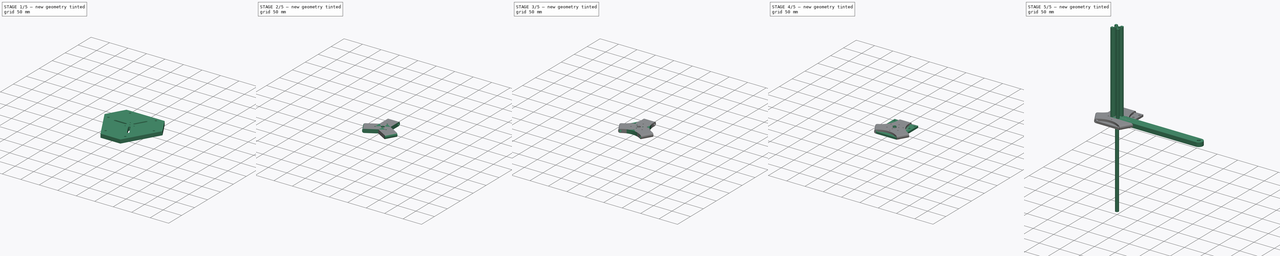
[diagram: build sequence overview — one tinted view per stage of 5, left to right]
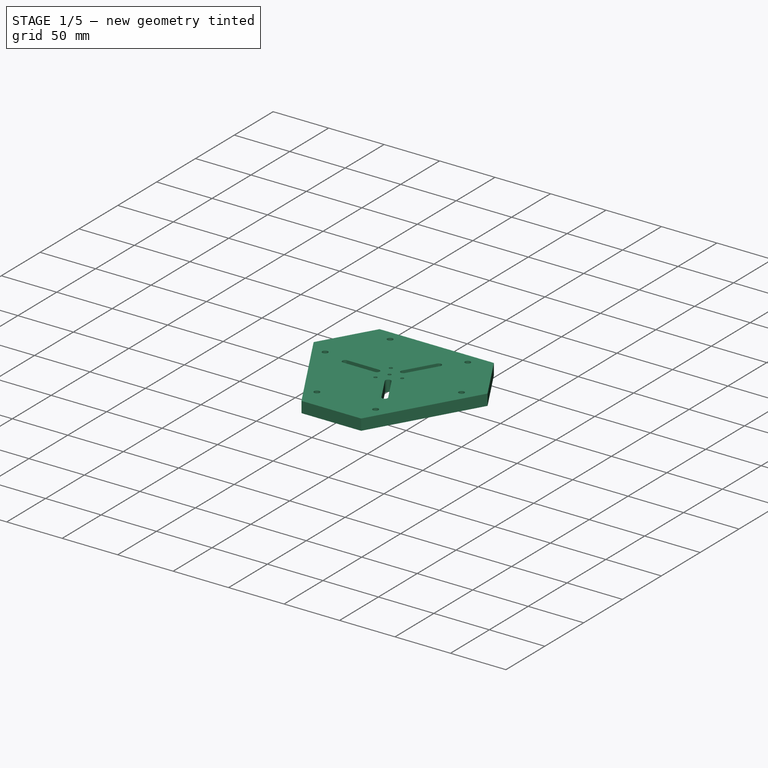
[diagram: stage 1 of 5 — iso view after this stage's code; geometry added in this stage tinted green]
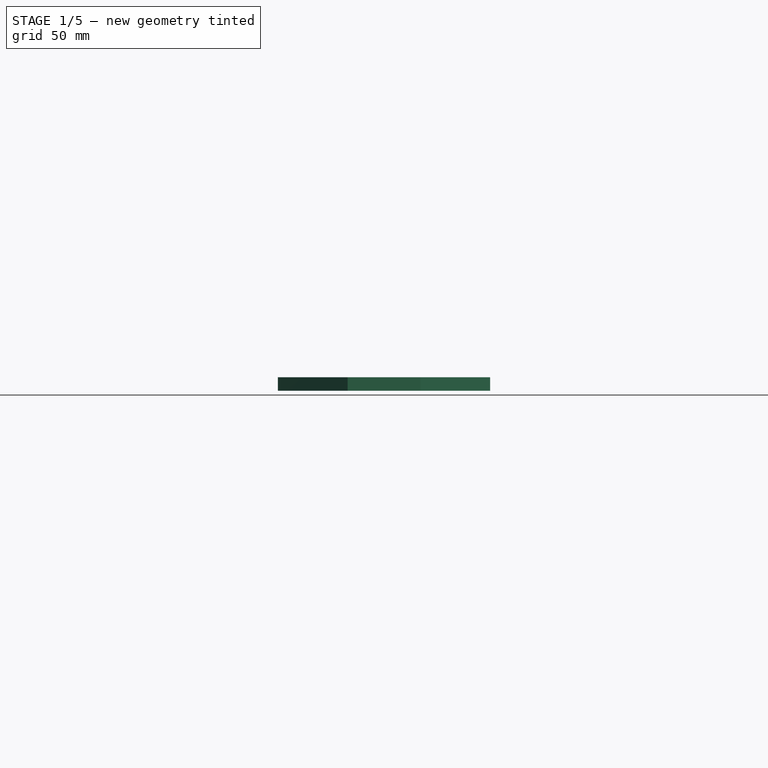
[diagram: stage 1 of 5 — front view after this stage's code; geometry added in this stage tinted green]
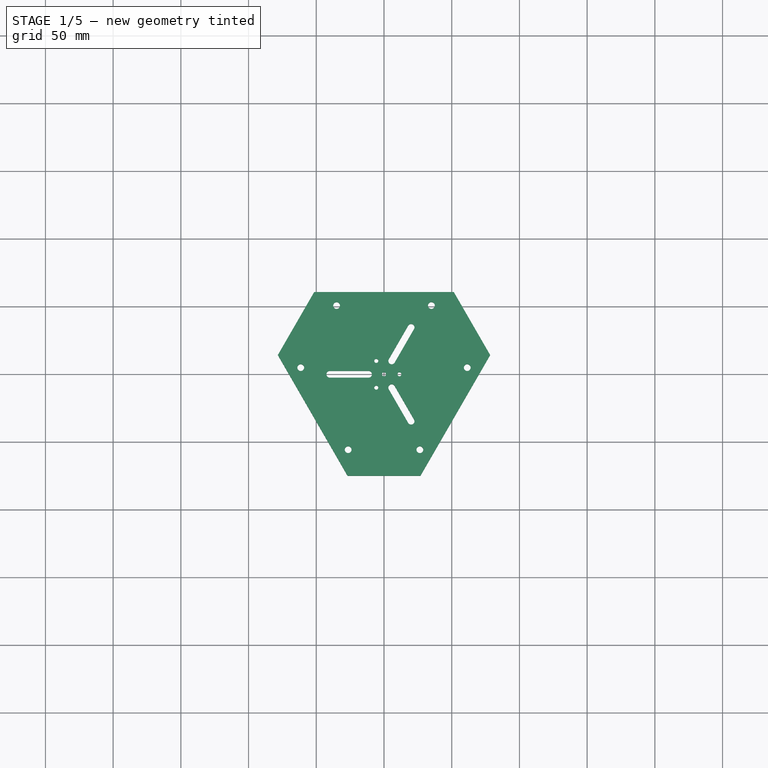
[diagram: stage 1 of 5 — top view after this stage's code; geometry added in this stage tinted green]
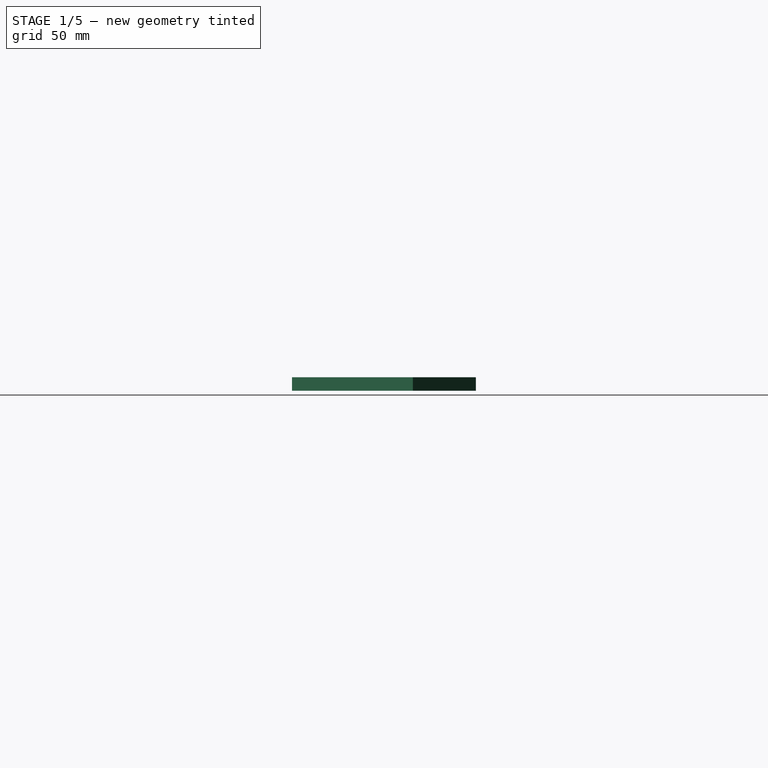
[diagram: stage 1 of 5 — right view after this stage's code; geometry added in this stage tinted green]
FCSTD DOCUMENT  (FreeCAD 1.0R38641 +468 (Git))
Label: 01main
License: All rights reserved
LicenseURL: https://en.wikipedia.org/wiki/All_rights_reserved
objects: Sketcher::SketchObject×14, PartDesign::Body×7, PartDesign::Pad×6, App::Part×4, PartDesign::Pocket×4, PartDesign::PolarPattern×3, PartDesign::Fillet×2, Spreadsheet::Sheet×1, PartDesign::Hole×1, PartDesign::Chamfer×1, PartDesign::Revolution×1, Part::Part2DObjectPython×1
note: 87 computed .brp shape members not serialized (recipe doc carries the construction recipe); baked Part::Feature solids carry a one-line shape summary decoded from their .brp

FEATURE [Spreadsheet::Sheet] Spreadsheet  label="ss"
  cells = A1='deltabot calculation - values for kinetic | https://www.marginallyclever.com/other/samples/fk-ik-test.html; A3='Base radius (f); B3(f)=300; D3='vslot_length-28.5!; E3==<<base_triangle_sketch>>.Constraints.vslot_length; F3='28.5 to add (halt nema 23); A4='Bicep length (rf); B4(rf)=200; C4='!= tube actual length; E4(vslot_length)==179.29 + 28.5; A5='Bicep inerdia (od_rf); B5(od_rf)=40; A6='Bicep outerdia (id_rf); B6(id_rf)=36; D6='DELTA_F; E6==<<Sketch024>>.Constraints.DELTA_F; A7='Bicep end length (end_rf); B7(end_rf)=25; A11='Forearm length (re); B11(re)=400; A12='End Effector radius (e); A13='Base to floor distance (b); A14='wrist(tool); B14(wrist)=90
FEATURE [Sketcher::SketchObject] Sketch
  ArcFitTolerance = 0
  AttachmentSupport = -> [XY_Plane]
  FullyConstrained = true
  MakeInternals = false
  MapMode = 5
  sketch-geometry (1):
    g0: Circle CenterX=0 CenterY=0 CenterZ=0 NormalX=0 NormalY=0 NormalZ=1 AngleXU=0 Radius=4
  constraints (2):
    c: Coincident(g0,g-1)
    c: Diameter(g0) = 8
FEATURE [App::Part] Part002  label="tool"
  Origin = -> Origin010
FEATURE [Sketcher::SketchObject] Sketch010
  ArcFitTolerance = 1e-06
  AttachmentSupport = -> [XY_Plane011]
  FullyConstrained = true
  MakeInternals = false
  MapMode = 5
FEATURE [Sketcher::SketchObject] Sketch011  label="base_triangle_sketch"
  ArcFitTolerance = 1e-06
  AttachmentSupport = -> [XY_Plane012]
  FullyConstrained = false
  MakeInternals = false
  MapMode = 5
  sketch-geometry (16):
    g0: Circle [constr] CenterX=0 CenterY=0 CenterZ=0 NormalX=0 NormalY=0 NormalZ=1 AngleXU=0 Radius=300
    g1: Circle [constr] CenterX=0 CenterY=0 CenterZ=0 NormalX=0 NormalY=0 NormalZ=1 AngleXU=0 Radius=110
    g2: LineSegment [constr] StartX=0 StartY=150 StartZ=0 EndX=-129.904 EndY=-75 EndZ=0
    g3: LineSegment [constr] StartX=-129.904 StartY=-75 StartZ=0 EndX=129.904 EndY=-75 EndZ=0
    g4: LineSegment [constr] StartX=129.904 StartY=-75 StartZ=0 EndX=0 EndY=150 EndZ=0
    g5: Circle [constr] CenterX=0 CenterY=0 CenterZ=0 NormalX=0 NormalY=0 NormalZ=1 AngleXU=0 Radius=150
    g6: LineSegment [constr] StartX=0 StartY=110 StartZ=0 EndX=195.089 EndY=-227.904 EndZ=0
    g7: LineSegment [constr] StartX=95.2628 StartY=-55 StartZ=0 EndX=-294.915 EndY=-55 EndZ=0
    g8: LineSegment [constr] StartX=-71.877 StartY=-83.2688 StartZ=0 EndX=67.7767 EndY=292.244 EndZ=0
    g9: LineSegment StartX=-51.5163 StartY=60.7711 StartZ=0 EndX=51.5163 EndY=60.7711 EndZ=0
    g10: LineSegment StartX=78.3875 StartY=14.2289 StartZ=0 EndX=26.8711 EndY=-75 EndZ=0
    g11: LineSegment StartX=-26.8711 StartY=-75 StartZ=0 EndX=-78.3875 EndY=14.2289 EndZ=0
    g12: LineSegment StartX=-51.5163 StartY=60.7711 StartZ=0 EndX=-78.3875 EndY=14.2289 EndZ=0
    g13: LineSegment StartX=-26.8711 StartY=-75 StartZ=0 EndX=26.8711 EndY=-75 EndZ=0
    g14: LineSegment StartX=51.5163 StartY=60.7711 StartZ=0 EndX=78.3875 EndY=14.2289 EndZ=0
    g15: LineSegment [constr] StartX=95.2628 StartY=-55 StartZ=0 EndX=112.583 EndY=-45 EndZ=0
  constraints (47):
    c: Coincident(g0,g-1)
    c: PointOnObject(g8,g1)
    c: PointOnObject(g7,g1)
    c: PointOnObject(g6,g1)
    c: Coincident(g1,g0)
    c: Coincident(g2,g3)
    c: Coincident(g3,g4)
    c: Coincident(g4,g2)
    c: Equal(g2,g3)
    c: Equal(g2,g4)
    c: PointOnObject(g2,g5)
    c: PointOnObject(g3,g5)
    c: PointOnObject(g4,g5)
    c: Coincident(g5,g0)
    c: PointOnObject(g6,g-2)
    c: PointOnObject(g2,g-2)
    c: PointOnObject(g6,g0)
    c: PointOnObject(g7,g6)
    c: PointOnObject(g7,g0)
    c: Horizontal(g7)
    c: PointOnObject(g6,g8)
    c: PointOnObject(g8,g0)
    c: Diameter(g5) = 300
    c: Distance(g6,g6) = 390.178  'vslot_length'
    c: PointOnObject(g9,g2)
    c: PointOnObject(g9,g4)
    c: Horizontal(g9)
    c: PointOnObject(g10,g4)
    c: PointOnObject(g10,g3)
    c: PointOnObject(g11,g3)
    c: PointOnObject(g11,g2)
    c: Coincident(g9,g12)
    c: Coincident(g12,g11)
    c: Coincident(g11,g13)
    c: Coincident(g13,g10)
    c: Coincident(g9,g14)
    c: Coincident(g14,g10)
    c: Equal(g13,g12)
    c: Equal(g12,g14)
    c: Angle(g13,g11) = 2.0944
    c: Angle(g10,g13) = 2.0944
    c: Parallel(g6,g14)
    c: Coincident(g15,g7)
    c: PointOnObject(g15,g4)
    c: Perpendicular(g6,g15)
    c: Distance(g15,g15) = 20
    c: Diameter(g0) = 600
FEATURE [PartDesign::Pad] Pad007
  Direction = (0,0,1)
  Length = 10
  Length2 = 10
  Profile = -> Sketch011
  ReferenceAxis = -> Sketch011 [N_Axis]
  Refine = true
  Suppressed = false
  Type = 0
FEATURE [Sketcher::SketchObject] Sketch015
  ArcFitTolerance = 1e-06
  AttachmentSupport = -> [XY_Plane014]
  FullyConstrained = false
  MakeInternals = false
  MapMode = 5
  sketch-geometry (50):
    g0: ArcOfCircle CenterX=0 CenterY=0 CenterZ=0 NormalX=0 NormalY=0 NormalZ=1 AngleXU=0 Radius=2.5 StartAngle=3.14159 EndAngle=6.28319
    g1: LineSegment StartX=-10 StartY=-5.1 StartZ=0 EndX=-10 EndY=-8.5 EndZ=0
    g2: ArcOfCircle CenterX=-8.5 CenterY=-8.5 CenterZ=0 NormalX=0 NormalY=0 NormalZ=1 AngleXU=0 Radius=1.5 StartAngle=3.14159 EndAngle=4.71239
    g3: LineSegment StartX=-8.5 StartY=-10 StartZ=0 EndX=-5.1 EndY=-10 EndZ=0
    g4: LineSegment StartX=-5.1 StartY=-10 StartZ=0 EndX=-3.1 EndY=-8 EndZ=0
    g5: LineSegment StartX=-3.1 StartY=-8 StartZ=0 EndX=-5.3 EndY=-8 EndZ=0
    g6: LineSegment StartX=-5.3 StartY=-8 StartZ=0 EndX=-5.3 EndY=-6.57279 EndZ=0
    g7: LineSegment StartX=-5.3 StartY=-6.57279 StartZ=0 EndX=-2.72721 EndY=-4 EndZ=0
    g8: LineSegment StartX=-2.72721 StartY=-4 StartZ=0 EndX=2.72721 EndY=-4 EndZ=0
    g9: LineSegment StartX=2.72721 StartY=-4 StartZ=0 EndX=5.3 EndY=-6.57279 EndZ=0
    g10: LineSegment StartX=5.3 StartY=-6.57279 StartZ=0 EndX=5.3 EndY=-8 EndZ=0
    g11: LineSegment StartX=5.3 StartY=-8 StartZ=0 EndX=3.1 EndY=-8 EndZ=0
    g12: LineSegment StartX=3.1 StartY=-8 StartZ=0 EndX=5.1 EndY=-10 EndZ=0
    g13: LineSegment StartX=5.1 StartY=-10 StartZ=0 EndX=8.5 EndY=-10 EndZ=0
    g14: ArcOfCircle CenterX=8.5 CenterY=-8.5 CenterZ=0 NormalX=0 NormalY=0 NormalZ=1 AngleXU=0 Radius=1.5 StartAngle=4.71239 EndAngle=6.28319
    g15: LineSegment StartX=10 StartY=-8.5 StartZ=0 EndX=10 EndY=-5.1 EndZ=0
    g16: LineSegment StartX=10 StartY=-5.1 StartZ=0 EndX=8 EndY=-3.1 EndZ=0
    g17: LineSegment StartX=8 StartY=-3.1 StartZ=0 EndX=8 EndY=-5.3 EndZ=0
    g18: LineSegment StartX=8 StartY=-5.3 StartZ=0 EndX=6.57279 EndY=-5.3 EndZ=0
    g19: LineSegment StartX=6.57279 StartY=-5.3 StartZ=0 EndX=4 EndY=-2.72721 EndZ=0
    g20: LineSegment StartX=4 StartY=-2.72721 StartZ=0 EndX=4 EndY=2.72721 EndZ=0
    g21: LineSegment StartX=4 StartY=2.72721 StartZ=0 EndX=6.57279 EndY=5.3 EndZ=0
    g22: LineSegment StartX=6.57279 StartY=5.3 StartZ=0 EndX=8 EndY=5.3 EndZ=0
    g23: LineSegment StartX=8 StartY=5.3 StartZ=0 EndX=8 EndY=3.1 EndZ=0
    g24: LineSegment StartX=8 StartY=3.1 StartZ=0 EndX=10 EndY=5.1 EndZ=0
    g25: LineSegment StartX=10 StartY=5.1 StartZ=0 EndX=10 EndY=8.5 EndZ=0
    g26: ArcOfCircle CenterX=8.5 CenterY=8.5 CenterZ=0 NormalX=0 NormalY=0 NormalZ=1 AngleXU=0 Radius=1.5 StartAngle=0 EndAngle=1.5708
    g27: LineSegment StartX=8.5 StartY=10 StartZ=0 EndX=5.1 EndY=10 EndZ=0
    g28: LineSegment StartX=5.1 StartY=10 StartZ=0 EndX=3.1 EndY=8 EndZ=0
    g29: LineSegment StartX=3.1 StartY=8 StartZ=0 EndX=5.3 EndY=8 EndZ=0
    g30: LineSegment StartX=5.3 StartY=8 StartZ=0 EndX=5.3 EndY=6.57279 EndZ=0
    g31: LineSegment StartX=5.3 StartY=6.57279 StartZ=0 EndX=2.72721 EndY=4 EndZ=0
    g32: LineSegment StartX=2.72721 StartY=4 StartZ=0 EndX=-2.72721 EndY=4 EndZ=0
    g33: LineSegment StartX=-2.72721 StartY=4 StartZ=0 EndX=-5.3 EndY=6.57279 EndZ=0
    g34: LineSegment StartX=-5.3 StartY=6.57279 StartZ=0 EndX=-5.3 EndY=8 EndZ=0
    g35: LineSegment StartX=-5.3 StartY=8 StartZ=0 EndX=-3.1 EndY=8 EndZ=0
    g36: LineSegment StartX=-3.1 StartY=8 StartZ=0 EndX=-5.1 EndY=10 EndZ=0
    g37: LineSegment StartX=-5.1 StartY=10 StartZ=0 EndX=-8.5 EndY=10 EndZ=0
    g38: ArcOfCircle CenterX=-8.5 CenterY=8.5 CenterZ=0 NormalX=0 NormalY=0 NormalZ=1 AngleXU=0 Radius=1.5 StartAngle=1.5708 EndAngle=3.14159
    g39: LineSegment StartX=-10 StartY=8.5 StartZ=0 EndX=-10 EndY=5.1 EndZ=0
    g40: LineSegment StartX=-10 StartY=5.1 StartZ=0 EndX=-8 EndY=3.1 EndZ=0
    g41: LineSegment StartX=-8 StartY=3.1 StartZ=0 EndX=-8 EndY=5.3 EndZ=0
    g42: LineSegment StartX=-8 StartY=5.3 StartZ=0 EndX=-6.57279 EndY=5.3 EndZ=0
    g43: LineSegment StartX=-6.57279 StartY=5.3 StartZ=0 EndX=-4 EndY=2.72721 EndZ=0
    g44: LineSegment StartX=-4 StartY=2.72721 StartZ=0 EndX=-4 EndY=-2.72721 EndZ=0
    g45: LineSegment StartX=-4 StartY=-2.72721 StartZ=0 EndX=-6.57279 EndY=-5.3 EndZ=0
    g46: LineSegment StartX=-6.57279 StartY=-5.3 StartZ=0 EndX=-8 EndY=-5.3 EndZ=0
    g47: LineSegment StartX=-8 StartY=-5.3 StartZ=0 EndX=-8 EndY=-3.1 EndZ=0
    g48: LineSegment StartX=-8 StartY=-3.1 StartZ=0 EndX=-10 EndY=-5.1 EndZ=0
    g49: ArcOfCircle CenterX=0 CenterY=0 CenterZ=0 NormalX=0 NormalY=0 NormalZ=1 AngleXU=0 Radius=2.5 StartAngle=0 EndAngle=3.14159
FEATURE [Sketcher::SketchObject] Sketch012
  ArcFitTolerance = 1e-06
  AttachmentSupport = -> [XY_Plane012]
  ExternalGeometry = -> [Pad007]
  FullyConstrained = true
  MakeInternals = false
  MapMode = 5
  sketch-geometry (7):
    g0: Circle CenterX=-35 CenterY=50.7711 CenterZ=0 NormalX=0 NormalY=0 NormalZ=1 AngleXU=0 Radius=2.5
    g1: LineSegment [constr] StartX=0 StartY=50.7711 StartZ=0 EndX=-35 EndY=50.7711 EndZ=0
    g2: Circle CenterX=35 CenterY=50.7711 CenterZ=0 NormalX=0 NormalY=0 NormalZ=1 AngleXU=0 Radius=2.5
    g3: ArcOfCircle [constr] CenterX=-35 CenterY=50.7711 CenterZ=0 NormalX=0 NormalY=0 NormalZ=1 AngleXU=0 Radius=2.6 StartAngle=1.5708 EndAngle=4.71239
    g4: ArcOfCircle [constr] CenterX=35 CenterY=50.7711 CenterZ=0 NormalX=0 NormalY=0 NormalZ=1 AngleXU=0 Radius=2.6 StartAngle=4.71239 EndAngle=7.85398
    g5: LineSegment [constr] StartX=-35 StartY=53.3711 StartZ=0 EndX=35 EndY=53.3711 EndZ=0
    g6: LineSegment [constr] StartX=-35 StartY=48.1711 StartZ=0 EndX=35 EndY=48.1711 EndZ=0
  constraints (16):
    c: Coincident(g0,g1)
    c: Symmetric(g0,g2,g1)
    c: Equal(g2,g0)
    c: Diameter(g0) = 5
    c: Distance(g0,g2) = 70
    c: Tangent(g3,g5) = 1.5708
    c: Tangent(g3,g6) = -1.5708
    c: Tangent(g4,g5) = 1.5708
    c: Tangent(g4,g6) = -1.5708
    c: Equal(g3,g4)
    c: Coincident(g3,g0)
    c: Coincident(g4,g2)
    c: Radius(g4) = 2.6
    c: PointOnObject(g1,g-2)
    c: Perpendicular(g-2,g1)
    c: DistanceY(g2,g-3) = 10
FEATURE [PartDesign::Pocket] Pocket003
  BaseFeature = -> Pad007
  Direction = (0,0,-1)
  Length = 5
  Length2 = 5
  Profile = -> Sketch012
  ReferenceAxis = -> Sketch012 [N_Axis]
  Refine = true
  Reversed = true
  Suppressed = false
  Type = 1
FEATURE [PartDesign::PolarPattern] PolarPattern
  Angle = 360
  Axis = -> Sketch012 [N_Axis]
  BaseFeature = -> Pocket003
  Mode = 0
  Occurrences = 3
  Offset = 120
  Originals = -> [Pocket003]
  Refine = true
  Suppressed = false
  TransformMode = 0
FEATURE [PartDesign::Body] Body  label="forearm_axis"
  AllowCompound = false
  Group = -> [Sketch,Pad,Sketch010]
  Origin = -> Origin
  Tip = -> Pad
FEATURE [App::Part] Part001  label="forearm"
  Group = -> [Body]
  Origin = -> Origin009
FEATURE [Sketcher::SketchObject] Sketch020
  ArcFitTolerance = 1e-06
  AttachmentSupport = -> [PolarPattern]
  ExternalGeometry = -> [PolarPattern]
  FullyConstrained = false
  MakeInternals = false
  MapMode = 5
  Placement = pos=(0,0,10) rot=(0,0,1;0rad)
  sketch-geometry (35):
    g0: GeomPoint [constr] X=0 Y=0 Z=0
    g1: Circle CenterX=-5.70397 CenterY=9.87956 CenterZ=0 NormalX=0 NormalY=0 NormalZ=1 AngleXU=0 Radius=1.5
    g2: Circle CenterX=0 CenterY=0 CenterZ=0 NormalX=0 NormalY=0 NormalZ=1 AngleXU=0 Radius=1.5
    g3: Circle CenterX=11.4079 CenterY=0 CenterZ=0 NormalX=0 NormalY=0 NormalZ=1 AngleXU=0 Radius=1.5
    g4: Circle CenterX=-5.70397 CenterY=-9.87956 CenterZ=0 NormalX=0 NormalY=0 NormalZ=1 AngleXU=0 Radius=1.5
    g5: LineSegment [constr] StartX=5.70397 StartY=-9.87956 StartZ=0 EndX=5.70397 EndY=9.87956 EndZ=0
    g6: LineSegment [constr] StartX=5.70397 StartY=9.87956 StartZ=0 EndX=-11.4079 EndY=0 EndZ=0
    g7: LineSegment [constr] StartX=-11.4079 StartY=0 StartZ=0 EndX=5.70397 EndY=-9.87956 EndZ=0
    g8: Circle [constr] CenterX=0 CenterY=0 CenterZ=0 NormalX=0 NormalY=0 NormalZ=1 AngleXU=0 Radius=11.4079
    g9: LineSegment [constr] StartX=0 StartY=0 StartZ=0 EndX=-28.1472 EndY=48.7524 EndZ=0
    g10: Circle [constr] CenterX=0 CenterY=0 CenterZ=0 NormalX=0 NormalY=0 NormalZ=1 AngleXU=0 Radius=40
    g11: LineSegment [constr] StartX=0 StartY=0 StartZ=0 EndX=20 EndY=34.641 EndZ=0
    g12: LineSegment [constr] StartX=0 StartY=0 StartZ=0 EndX=20 EndY=-34.641 EndZ=0
    g13: LineSegment [constr] StartX=0 StartY=0 StartZ=0 EndX=-40 EndY=0 EndZ=0
    g14: GeomPoint [constr] X=-12.1812 Y=21.0985 Z=0
    g15: ArcOfCircle CenterX=-40 CenterY=2e-16 CenterZ=0 NormalX=0 NormalY=0 NormalZ=1 AngleXU=0 Radius=2.5 StartAngle=1.5708 EndAngle=4.71239
    g16: ArcOfCircle CenterX=-11.4079 CenterY=0 CenterZ=0 NormalX=0 NormalY=0 NormalZ=1 AngleXU=0 Radius=2.5 StartAngle=4.71239 EndAngle=7.85398
    g17: LineSegment StartX=-40 StartY=2.5 StartZ=0 EndX=-11.4079 EndY=2.5 EndZ=0
    g18: LineSegment StartX=-40 StartY=-2.5 StartZ=0 EndX=-11.4079 EndY=-2.5 EndZ=0
    g19: ArcOfCircle CenterX=5.70397 CenterY=-9.87956 CenterZ=0 NormalX=0 NormalY=0 NormalZ=1 AngleXU=0 Radius=2.5 StartAngle=0.523599 EndAngle=3.66519
    g20: ArcOfCircle CenterX=20 CenterY=-34.641 CenterZ=0 NormalX=0 NormalY=0 NormalZ=1 AngleXU=0 Radius=2.5 StartAngle=3.66519 EndAngle=6.80678
    g21: LineSegment StartX=7.86903 StartY=-8.62956 StartZ=0 EndX=22.1651 EndY=-33.391 EndZ=0
    g22: LineSegment StartX=3.5389 StartY=-11.1296 StartZ=0 EndX=17.8349 EndY=-35.891 EndZ=0
    g23: ArcOfCircle CenterX=5.70397 CenterY=9.87956 CenterZ=0 NormalX=0 NormalY=0 NormalZ=1 AngleXU=0 Radius=2.5 StartAngle=2.61799 EndAngle=5.75959
    g24: ArcOfCircle CenterX=20 CenterY=34.641 CenterZ=0 NormalX=0 NormalY=0 NormalZ=1 AngleXU=0 Radius=2.5 StartAngle=5.75959 EndAngle=8.90118
    g25: LineSegment StartX=3.5389 StartY=11.1296 StartZ=0 EndX=17.8349 EndY=35.891 EndZ=0
    g26: LineSegment StartX=7.86903 StartY=8.62956 StartZ=0 EndX=22.1651 EndY=33.391 EndZ=0
    g27: Circle [constr] CenterX=0 CenterY=0 CenterZ=0 NormalX=0 NormalY=0 NormalZ=1 AngleXU=0 Radius=11.4079
    g28: LineSegment [constr] StartX=5.70397 StartY=9.87956 StartZ=0 EndX=-5.70397 EndY=-9.87956 EndZ=0
    g29: Circle [constr] CenterX=20 CenterY=34.641 CenterZ=0 NormalX=0 NormalY=0 NormalZ=1 AngleXU=0 Radius=2.5
    g30: Circle [constr] CenterX=5.70397 CenterY=9.87956 CenterZ=0 NormalX=0 NormalY=0 NormalZ=1 AngleXU=0 Radius=2.5
    g31: Circle CenterX=-11.4079 CenterY=0 CenterZ=0 NormalX=0 NormalY=0 NormalZ=1 AngleXU=0 Radius=1e-16
    g32: Circle [constr] CenterX=-11.4079 CenterY=0 CenterZ=0 NormalX=0 NormalY=0 NormalZ=1 AngleXU=0 Radius=2.5
    g33: Circle [constr] CenterX=5.70397 CenterY=-9.87956 CenterZ=0 NormalX=0 NormalY=0 NormalZ=1 AngleXU=0 Radius=2.5
    g34: Circle [constr] CenterX=-40 CenterY=0 CenterZ=0 NormalX=0 NormalY=0 NormalZ=1 AngleXU=0 Radius=2.5
  constraints (77):
    c: Coincident(g0,g-1)
    c: Diameter(g1) = 3
    c: Diameter(g2) = 3
    c: Diameter(g3) = 3
    c: Diameter(g4) = 3
    c: Coincident(g5,g6)
    c: Coincident(g6,g7)
    c: Coincident(g7,g5)
    c: Equal(g5,g6)
    c: Equal(g5,g7)
    c: PointOnObject(g5,g8)
    c: PointOnObject(g6,g8)
    c: PointOnObject(g7,g8)
    c: Coincident(g8,g0)
    c: Coincident(g9,g0)
    c: Parallel(g-3,g9)
    c: Coincident(g10,g0)
    c: Coincident(g11,g0)
    c: PointOnObject(g11,g10)
    c: PointOnObject(g5,g11)
    c: Coincident(g12,g0)
    c: PointOnObject(g12,g10)
    c: PointOnObject(g5,g12)
    c: Coincident(g13,g0)
    c: PointOnObject(g13,g10)
    c: Horizontal(g13)
    c: PointOnObject(g6,g13)
    c: PointOnObject(g14,g9)
    c: Tangent(g15,g17) = 1.5708
    c: Tangent(g15,g18) = -1.5708
    c: Tangent(g16,g17) = 1.5708
    c: Tangent(g16,g18) = -1.5708
    c: Equal(g15,g16)
    c: Horizontal(g18)
    c: Tangent(g19,g21) = 1.5708
    c: Tangent(g19,g22) = -1.5708
    c: Tangent(g20,g21) = 1.5708
    c: Tangent(g20,g22) = -1.5708
    c: Equal(g19,g20)
    c: Coincident(g19,g5)
    c: Coincident(g20,g12)
    c: Tangent(g23,g25) = 1.5708
    c: Tangent(g23,g26) = -1.5708
    c: Tangent(g24,g25) = 1.5708
    c: Tangent(g24,g26) = -1.5708
    c: Equal(g23,g24)
    c: Coincident(g23,g5)
    c: Coincident(g24,g11)
    c: Equal(g24,g15)
    c: Equal(g15,g20)
    c: Radius(g24) = 2.5
    c: PointOnObject(g15,g10)
    c: Coincident(g2,g0)
    c: PointOnObject(g1,g9)
    c: Coincident(g6,g16)
    c: PointOnObject(g3,g-1)
    c: Coincident(g27,g0)
    c: PointOnObject(g1,g27)
    c: PointOnObject(g3,g27)
    c: PointOnObject(g4,g27)
    c: Coincident(g28,g5)
    c: Coincident(g28,g4)
    c: PointOnObject(g0,g28)
    c: PointOnObject(g6,g27)
    c: Coincident(g29,g11)
    c: PointOnObject(g24,g29)
    c: Coincident(g30,g5)
    c: PointOnObject(g23,g30)
    c: Coincident(g31,g6)
    c: Tangent(g31,g8)
    c: Coincident(g32,g6)
    c: PointOnObject(g16,g32)
    c: Coincident(g33,g5)
    c: PointOnObject(g19,g33)
    c: Coincident(g34,g13)
    c: PointOnObject(g15,g34)
    c: Diameter(g10) = 80
FEATURE [PartDesign::Pocket] Pocket
  BaseFeature = -> PolarPattern
  Direction = (0,0,-1)
  Length = 5
  Length2 = 5
  Profile = -> Sketch020
  ReferenceAxis = -> Sketch020 [N_Axis]
  Refine = true
  Suppressed = false
  Type = 1
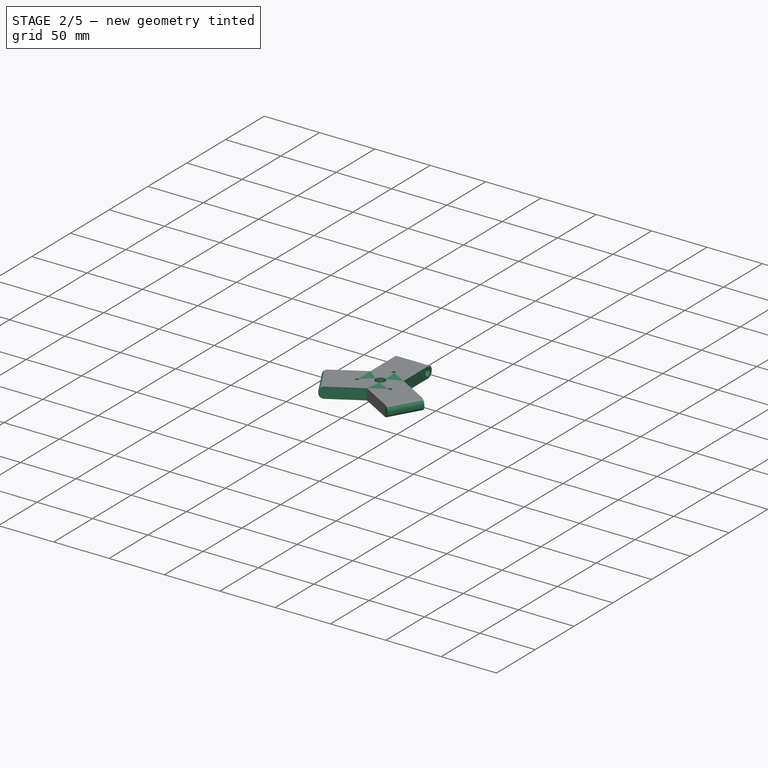
[diagram: stage 2 of 5 — iso view after this stage's code; geometry added in this stage tinted green]
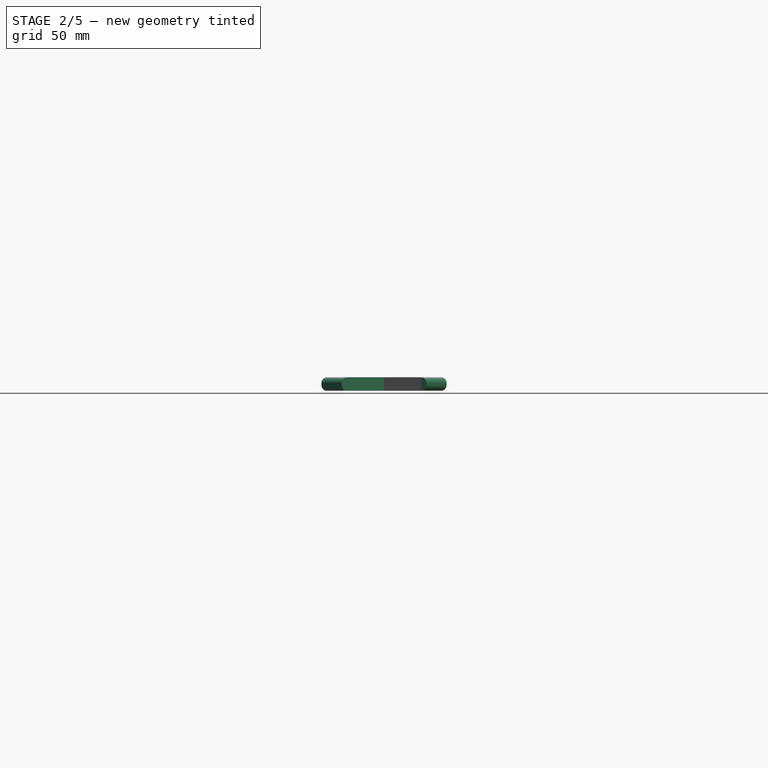
[diagram: stage 2 of 5 — front view after this stage's code; geometry added in this stage tinted green]
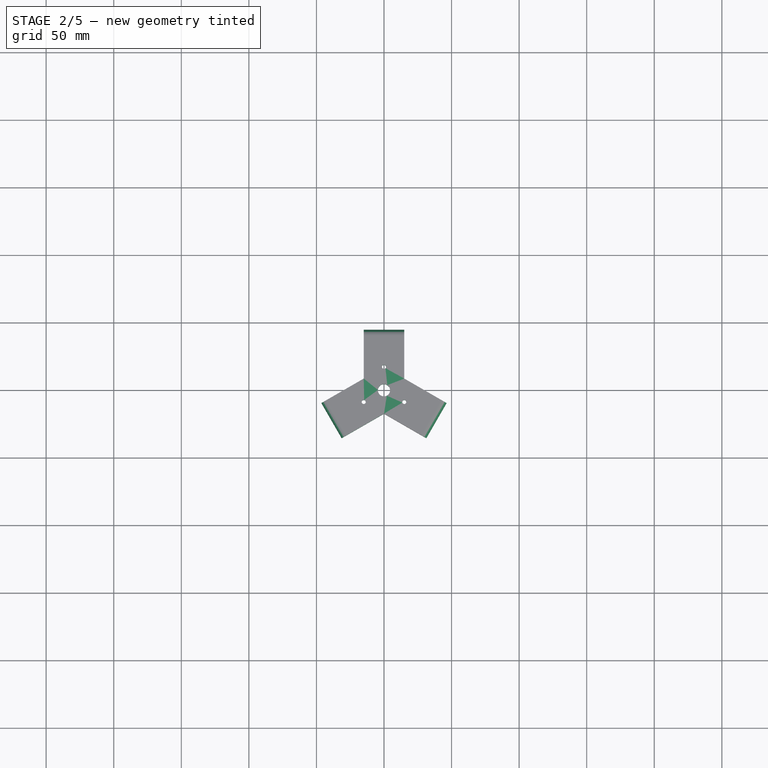
[diagram: stage 2 of 5 — top view after this stage's code; geometry added in this stage tinted green]
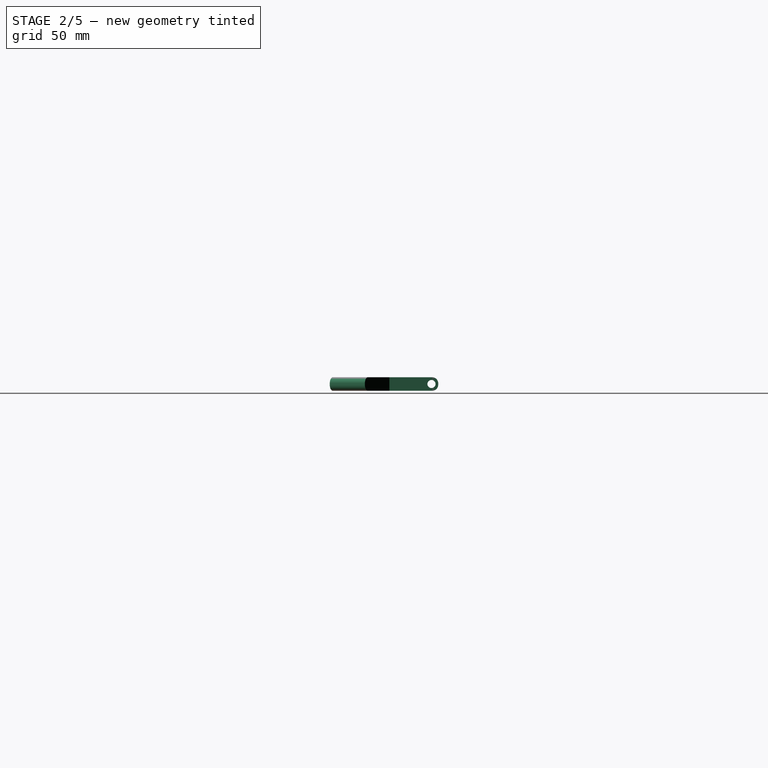
[diagram: stage 2 of 5 — right view after this stage's code; geometry added in this stage tinted green]
FEATURE [Sketcher::SketchObject] Sketch021
  ArcFitTolerance = 1e-06
  AttachmentSupport = -> [XY_Plane017]
  FullyConstrained = false
  MakeInternals = false
  MapMode = 5
  expr: Constraints[19] = <<ss>>.wrist / 10
  sketch-geometry (22):
    g0: Circle [constr] CenterX=0 CenterY=0 CenterZ=0 NormalX=0 NormalY=0 NormalZ=1 AngleXU=0 Radius=44.8482
    g1: LineSegment [constr] StartX=-77.6793 StartY=44.8482 StartZ=0 EndX=0 EndY=-89.6963 EndZ=0
    g2: LineSegment [constr] StartX=0 StartY=-89.6963 StartZ=0 EndX=77.6793 EndY=44.8482 EndZ=0
    g3: LineSegment [constr] StartX=77.6793 StartY=44.8482 StartZ=0 EndX=-77.6793 EndY=44.8482 EndZ=0
    g4: Circle [constr] CenterX=0 CenterY=0 CenterZ=0 NormalX=0 NormalY=0 NormalZ=1 AngleXU=0 Radius=89.6963
    g5: LineSegment StartX=-31.3396 StartY=-35.4145 StartZ=0 EndX=-46.3396 EndY=-9.4337 EndZ=0
    g6: LineSegment StartX=-15 StartY=44.8482 StartZ=0 EndX=15 EndY=44.8482 EndZ=0
    g7: Circle CenterX=0 CenterY=0 CenterZ=0 NormalX=0 NormalY=0 NormalZ=1 AngleXU=0 Radius=4.5
    g8: LineSegment StartX=31.3396 StartY=-35.4145 StartZ=0 EndX=46.3396 EndY=-9.4337 EndZ=0
    g9: LineSegment StartX=15 StartY=44.8482 StartZ=0 EndX=15 EndY=8.66025 EndZ=0
    g10: LineSegment StartX=15 StartY=8.66025 StartZ=0 EndX=46.3396 EndY=-9.4337 EndZ=0
    g11: LineSegment StartX=-31.3396 StartY=-35.4145 StartZ=0 EndX=0 EndY=-17.3205 EndZ=0
    g12: LineSegment StartX=0 StartY=-17.3205 StartZ=0 EndX=31.3396 EndY=-35.4145 EndZ=0
    g13: LineSegment StartX=-46.3396 StartY=-9.4337 StartZ=0 EndX=-15 EndY=8.66025 EndZ=0
    g14: LineSegment StartX=-15 StartY=8.66025 StartZ=0 EndX=-15 EndY=44.8482 EndZ=0
    g15: Circle CenterX=0 CenterY=17.3205 CenterZ=0 NormalX=0 NormalY=0 NormalZ=1 AngleXU=0 Radius=1.5
    g16: Circle CenterX=15 CenterY=-8.66025 CenterZ=0 NormalX=0 NormalY=0 NormalZ=1 AngleXU=0 Radius=1.5
    g17: Circle CenterX=-15 CenterY=-8.66025 CenterZ=0 NormalX=0 NormalY=0 NormalZ=1 AngleXU=0 Radius=1.5
    g18: LineSegment [constr] StartX=0 StartY=17.3205 StartZ=0 EndX=-15 EndY=-8.66025 EndZ=0
    g19: LineSegment [constr] StartX=-15 StartY=-8.66025 StartZ=0 EndX=15 EndY=-8.66025 EndZ=0
    g20: LineSegment [constr] StartX=15 StartY=-8.66025 StartZ=0 EndX=0 EndY=17.3205 EndZ=0
    g21: Circle [constr] CenterX=0 CenterY=0 CenterZ=0 NormalX=0 NormalY=0 NormalZ=1 AngleXU=0 Radius=17.3205
  constraints (59):
    c: Coincident(g0,g-1)
    c: Coincident(g1,g2)
    c: Coincident(g2,g3)
    c: Coincident(g3,g1)
    c: Equal(g1,g2)
    c: Equal(g1,g3)
    c: PointOnObject(g1,g4)
    c: PointOnObject(g2,g4)
    c: PointOnObject(g3,g4)
    c: Tangent(g3,g0)
    c: PointOnObject(g5,g1)
    c: PointOnObject(g6,g3)
    c: PointOnObject(g8,g2)
    c: PointOnObject(g6,g3)
    c: PointOnObject(g5,g1)
    c: PointOnObject(g8,g2)
    c: Horizontal(g3)
    c: Coincident(g0,g4)
    c: Coincident(g7,g0)
    c: Diameter(g7) = 9
    c: Distance(g8,g8) = 30
    c: Coincident(g6,g9)
    c: Coincident(g9,g10)
    c: Coincident(g10,g8)
    c: Coincident(g5,g11)
    c: Coincident(g11,g12)
    c: Coincident(g12,g8)
    c: Coincident(g5,g13)
    c: Coincident(g13,g14)
    c: Coincident(g14,g6)
    c: Equal(g14,g13)
    c: Equal(g13,g11)
    c: Equal(g11,g12)
    c: Equal(g9,g10)
    c: Equal(g10,g12)
    c: Perpendicular(g8,g10)
    c: Perpendicular(g6,g9)
    c: Perpendicular(g5,g13)
    c: Perpendicular(g6,g14)
    c: Perpendicular(g11,g5)
    c: PointOnObject(g15,g-2)
    c: Coincident(g18,g19)
    c: Coincident(g19,g20)
    c: Coincident(g20,g18)
    c: Equal(g18,g19)
    c: Equal(g18,g20)
    c: PointOnObject(g18,g21)
    c: PointOnObject(g19,g21)
    c: PointOnObject(g20,g21)
    c: Coincident(g21,g0)
    c: Coincident(g20,g15)
    c: Coincident(g16,g19)
    c: Coincident(g17,g18)
    c: Equal(g17,g16)
    c: Equal(g16,g15)
    c: Diameter(g15) = 3
    c: PointOnObject(g11,g-2)
    c: DistanceX(g3,g3) = 155.359
    c: Distance(g20,g20) = 30
FEATURE [PartDesign::Pad] Pad011
  Direction = (0,0,1)
  Length = 10
  Length2 = 10
  Profile = -> Sketch021
  ReferenceAxis = -> Sketch021 [N_Axis]
  Refine = true
  Suppressed = false
  Type = 0
FEATURE [PartDesign::Fillet] Fillet
  Base = -> Pad011 [Edge15,Edge24,Edge6,Edge25,Edge7,Edge16]
  BaseFeature = -> Pad011
  Radius = 4.5
  Refine = true
  SupportTransform = false
  Suppressed = false
  UseAllEdges = false
FEATURE [PartDesign::Body] Body010  label="cone_spacer"
  AllowCompound = false
  Group = -> [Sketch023,Revolution]
  Origin = -> Origin040
  Tip = -> Revolution
FEATURE [Sketcher::SketchObject] Sketch022
  ArcFitTolerance = 1e-06
  AttachmentSupport = -> [YZ_Plane017]
  ExternalGeometry = -> [Fillet]
  FullyConstrained = false
  MakeInternals = false
  MapMode = 5
  Placement = pos=(0,0,0) rot=(0.57735,0.57735,0.57735;2.0944rad)
  sketch-geometry (2):
    g0: Circle CenterX=39.8482 CenterY=5 CenterZ=0 NormalX=0 NormalY=0 NormalZ=1 AngleXU=0 Radius=3
    g1: LineSegment [constr] StartX=29.5949 StartY=5 StartZ=0 EndX=44.8482 EndY=5 EndZ=0
  constraints (5):
    c: Diameter(g0) = 6
    c: Symmetric(g-3,g-4,g1)
    c: PointOnObject(g0,g1)
    c: Vertical(g1,g-4)
    c: DistanceX(g0,g1) = 5
FEATURE [PartDesign::Pocket] Pocket004
  BaseFeature = -> Fillet
  Direction = (-1,0,0)
  Length = 5
  Length2 = 5
  Midplane = true
  Profile = -> Sketch022
  ReferenceAxis = -> Sketch022 [N_Axis]
  Refine = true
  Suppressed = false
  Type = 1
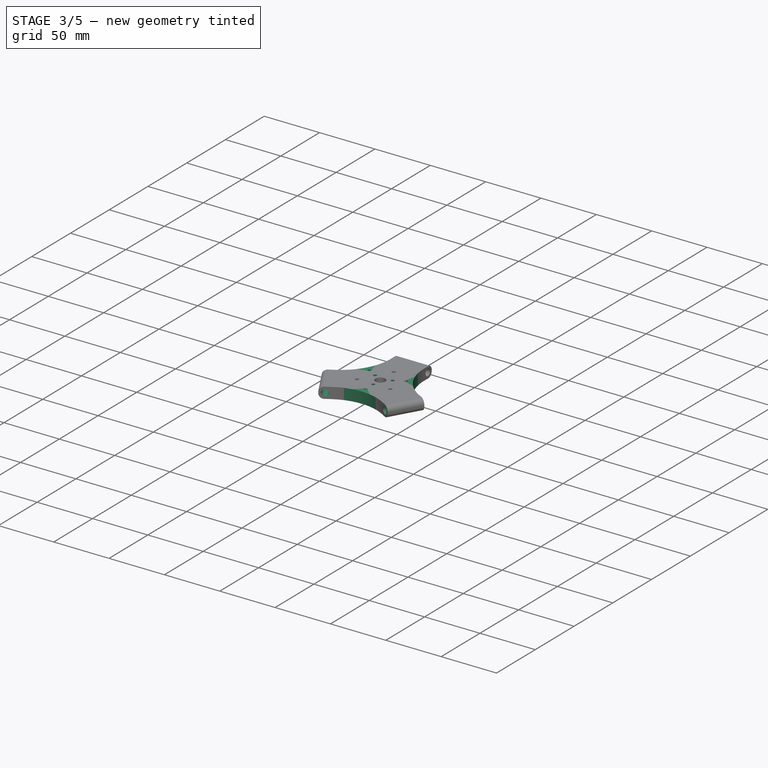
[diagram: stage 3 of 5 — iso view after this stage's code; geometry added in this stage tinted green]
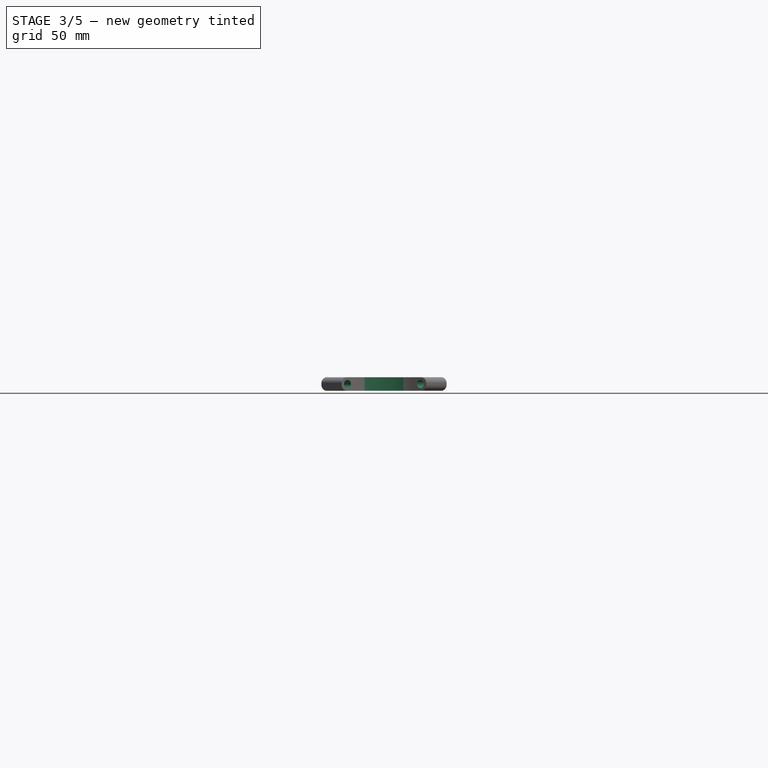
[diagram: stage 3 of 5 — front view after this stage's code; geometry added in this stage tinted green]
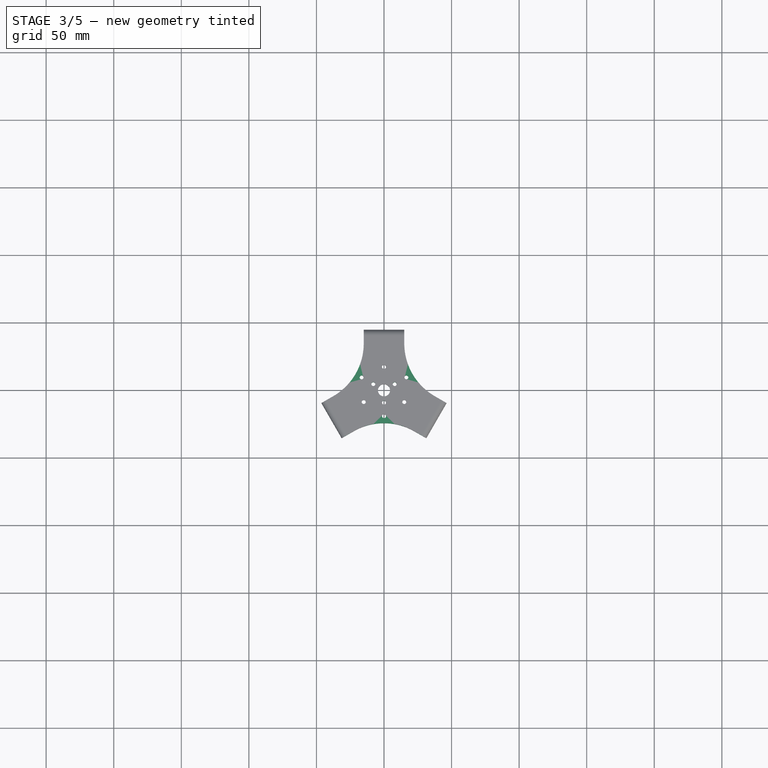
[diagram: stage 3 of 5 — top view after this stage's code; geometry added in this stage tinted green]
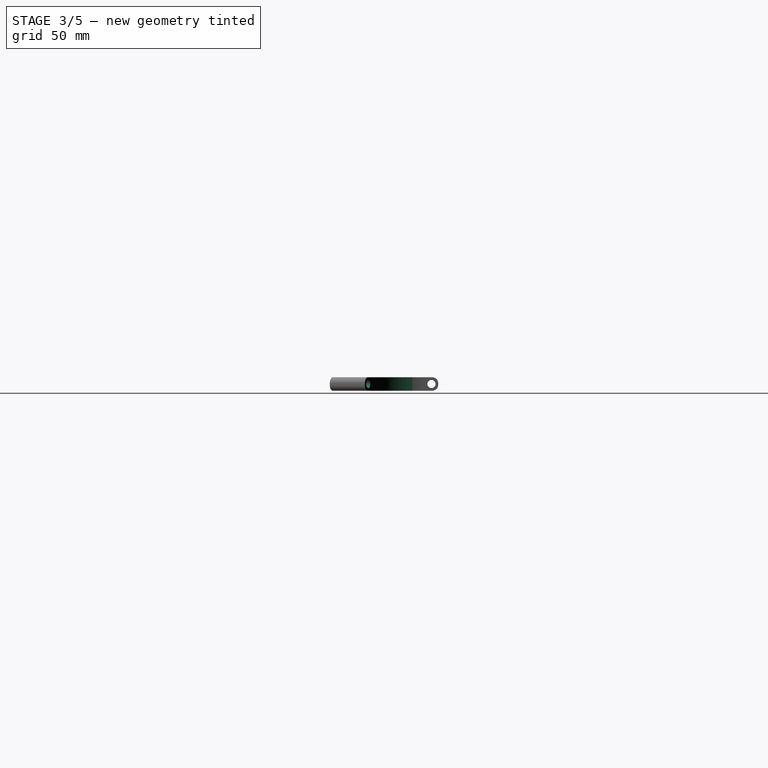
[diagram: stage 3 of 5 — right view after this stage's code; geometry added in this stage tinted green]
FEATURE [PartDesign::PolarPattern] PolarPattern001
  Angle = 360
  Axis = -> Sketch022 [V_Axis]
  BaseFeature = -> Pocket004
  Mode = 0
  Occurrences = 3
  Offset = 120
  Originals = -> [Pocket004]
  Refine = true
  Suppressed = false
  TransformMode = 0
FEATURE [PartDesign::Fillet] Fillet001
  Base = -> PolarPattern001 [Edge52,Edge43,Edge6]
  BaseFeature = -> PolarPattern001
  Radius = 45
  Refine = true
  SupportTransform = false
  Suppressed = false
  UseAllEdges = false
FEATURE [Part::Part2DObjectPython] Shape2DView  # Draft 2D object (typed FeaturePython)
  AutoUpdate = true
  Base = -> Pocket
  Clip = false
  FuseArch = false
  HiddenLines = false
  InPlace = true
  OnlySolids = false
  Projection = (0,0,1)
  ProjectionMode = 0
  SegmentLength = 0.05
  Tessellation = false
  VisibleOnly = false
FEATURE [Sketcher::SketchObject] Sketch024
  ArcFitTolerance = 1e-06
  AttachmentSupport = -> [XY_Plane012]
  ExternalGeometry = -> [Pocket]
  FullyConstrained = true
  MakeInternals = false
  MapMode = 5
  sketch-geometry (18):
    g0: LineSegment [constr] StartX=-179.382 StartY=80.7711 StartZ=0 EndX=-179.382 EndY=40.7711 EndZ=0
    g1: LineSegment [constr] StartX=-179.382 StartY=40.7711 StartZ=0 EndX=70.6176 EndY=40.7711 EndZ=0
    g2: LineSegment [constr] StartX=70.6176 StartY=40.7711 StartZ=0 EndX=70.6176 EndY=80.7711 EndZ=0
    g3: LineSegment [constr] StartX=70.6176 StartY=80.7711 StartZ=0 EndX=-179.382 EndY=80.7711 EndZ=0
    g4: LineSegment [constr] StartX=-70.6176 StartY=40.7711 StartZ=0 EndX=54.3824 EndY=-175.735 EndZ=0
    g5: LineSegment [constr] StartX=54.3824 StartY=-175.735 StartZ=0 EndX=19.7414 EndY=-195.735 EndZ=0
    g6: LineSegment [constr] StartX=19.7414 StartY=-195.735 StartZ=0 EndX=-105.259 EndY=20.7711 EndZ=0
    g7: LineSegment [constr] StartX=-105.259 StartY=20.7711 StartZ=0 EndX=-70.6176 EndY=40.7711 EndZ=0
    g8: LineSegment [constr] StartX=45.7221 StartY=-180.735 StartZ=0 EndX=-79.2779 EndY=35.7711 EndZ=0
    g9: LineSegment [constr] StartX=125 StartY=134.964 StartZ=0 EndX=-2.84e-14 EndY=-81.5422 EndZ=0
    g10: LineSegment [constr] StartX=-2.84e-14 StartY=-81.5422 StartZ=0 EndX=8.66025 EndY=-86.5422 EndZ=0
    g11: LineSegment [constr] StartX=8.66025 StartY=-86.5422 StartZ=0 EndX=133.66 EndY=129.964 EndZ=0
    g12: LineSegment [constr] StartX=133.66 StartY=129.964 StartZ=0 EndX=125 EndY=134.964 EndZ=0
    g13: GeomPoint [constr] X=-156.232 Y=20.7711 Z=0
    g14: LineSegment [constr] StartX=-156.232 StartY=270.602 StartZ=0 EndX=-156.232 EndY=-270.602 EndZ=0
    g15: LineSegment [constr] StartX=-156.232 StartY=-270.602 StartZ=0 EndX=312.465 EndY=0 EndZ=0
    g16: LineSegment [constr] StartX=312.465 StartY=0 StartZ=0 EndX=-156.232 EndY=270.602 EndZ=0
    g17: Circle [constr] CenterX=0 CenterY=0 CenterZ=0 NormalX=0 NormalY=0 NormalZ=1 AngleXU=0 Radius=312.465
  constraints (54):
    c: Coincident(g0,g1)
    c: Coincident(g1,g2)
    c: Vertical(g2)
    c: Coincident(g2,g3)
    c: Coincident(g3,g0)
    c: Horizontal(g3)
    c: Vertical(g0)
    c: DistanceY(g0,g-9) = 10
    c: Horizontal(g1)
    c: DistanceY(g0,g0) = 40
    c: DistanceX(g3,g3) = 250
    c: PointOnObject(g4,g1)
    c: Coincident(g4,g5)
    c: Coincident(g5,g6)
    c: Coincident(g6,g7)
    c: Coincident(g7,g4)
    c: Parallel(g-4,g4)
    c: Parallel(g6,g4)
    c: Perpendicular(g4,g5)
    c: Perpendicular(g4,g7)
    c: Distance(g5,g5) = 40
    c: PointOnObject(g8,g5)
    c: PointOnObject(g8,g7)
    c: Parallel(g8,g6)
    c: Distance(g4,g8) = 10
    c: Distance(g6,g6) = 250
    c: Distance(g9,g9) = 250
    c: Parallel(g-5,g9)
    c: PointOnObject(g1,g9)
    c: PointOnObject(g9,g4)
    c: PointOnObject(g-11,g8)
    c: Coincident(g9,g10)
    c: Coincident(g10,g11)
    c: Parallel(g11,g9)
    c: Perpendicular(g9,g10)
    c: Distance(g10,g10) = 10
    c: PointOnObject(g-6,g11)
    c: Equal(g11,g9)
    c: Coincident(g11,g12)
    c: Coincident(g12,g9)
    c: DistanceX(g0,g13) = 23.15
    c: DistanceY(g13,g0) = 20
    c: Coincident(g14,g15)
    c: Coincident(g15,g16)
    c: Coincident(g16,g14)
    c: Equal(g14,g15)
    c: Equal(g14,g16)
    c: PointOnObject(g14,g17)
    c: PointOnObject(g15,g17)
    c: PointOnObject(g16,g17)
    c: Coincident(g17,g-1)
    c: Vertical(g14)
    c: PointOnObject(g13,g14)
    c: Distance(g16,g16) = 541.205  'DELTA_F'
FEATURE [PartDesign::Body] Body004  label="base_triangle"
  AllowCompound = false
  Group = -> [Sketch011,Pad007,Sketch012,Pocket003,PolarPattern,Sketch020,Pocket,Sketch024]
  Origin = -> Origin012
  Tip = -> Pocket
FEATURE [App::Part] Part003  label="base"
  Group = -> [Body004]
  Origin = -> Origin011
FEATURE [Sketcher::SketchObject] Sketch025
  ArcFitTolerance = 1e-06
  AttachmentSupport = -> [Fillet001]
  ExternalGeometry = -> [Fillet001]
  FullyConstrained = false
  MakeInternals = false
  MapMode = 5
  Placement = pos=(0,0,10) rot=(0,0,1;0rad)
  sketch-geometry (3):
    g0: LineSegment [constr] StartX=-15 StartY=-8.66025 StartZ=0 EndX=48.1553 EndY=27.8025 EndZ=0
    g1: Circle CenterX=7.9174 CenterY=4.57111 CenterZ=0 NormalX=0 NormalY=0 NormalZ=1 AngleXU=0 Radius=1.4457
    g2: Circle CenterX=16.5777 CenterY=9.57111 CenterZ=0 NormalX=0 NormalY=0 NormalZ=1 AngleXU=0 Radius=1.4457
  constraints (6):
    c: Coincident(g0,g-4)
    c: PointOnObject(g-1,g0)
    c: PointOnObject(g1,g0)
    c: Symmetric(g0,g0,g2)
    c: Equal(g1,g2)
    c: Distance(g1,g2) = 10
FEATURE [PartDesign::Pocket] Pocket005
  BaseFeature = -> Fillet001
  Direction = (0,0,-1)
  Length = 5
  Length2 = 5
  Profile = -> Sketch025
  ReferenceAxis = -> Sketch025 [N_Axis]
  Refine = true
  Suppressed = false
  Type = 1
FEATURE [PartDesign::PolarPattern] PolarPattern002
  Angle = 360
  Axis = -> Sketch025 [N_Axis]
  BaseFeature = -> Pocket005
  Mode = 0
  Occurrences = 3
  Offset = 120
  Originals = -> [Pocket005]
  Refine = true
  Suppressed = false
  TransformMode = 0
FEATURE [PartDesign::Body] Body009  label="tool001"
  AllowCompound = false
  Group = -> [Sketch021,Pad011,Fillet,Sketch022,Pocket004,PolarPattern001,Fillet001,Sketch025,Pocket005,PolarPattern002]
  Origin = -> Origin039
  Tip = -> PolarPattern002
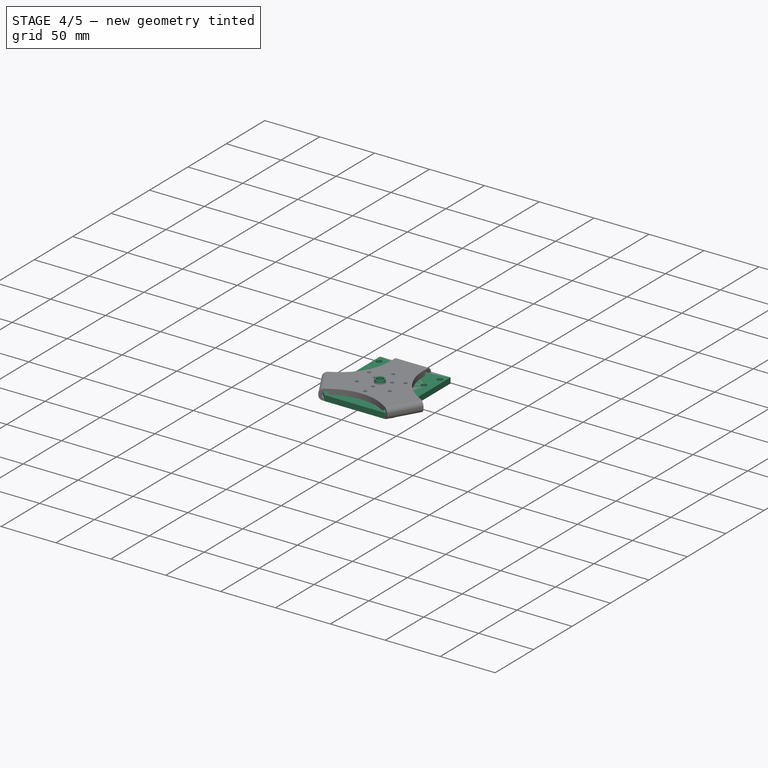
[diagram: stage 4 of 5 — iso view after this stage's code; geometry added in this stage tinted green]
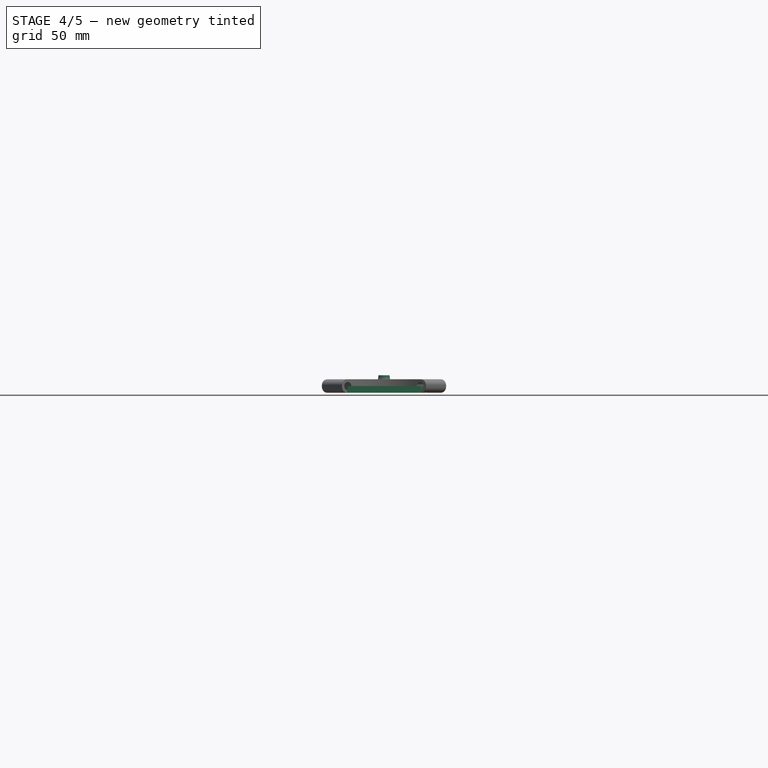
[diagram: stage 4 of 5 — front view after this stage's code; geometry added in this stage tinted green]
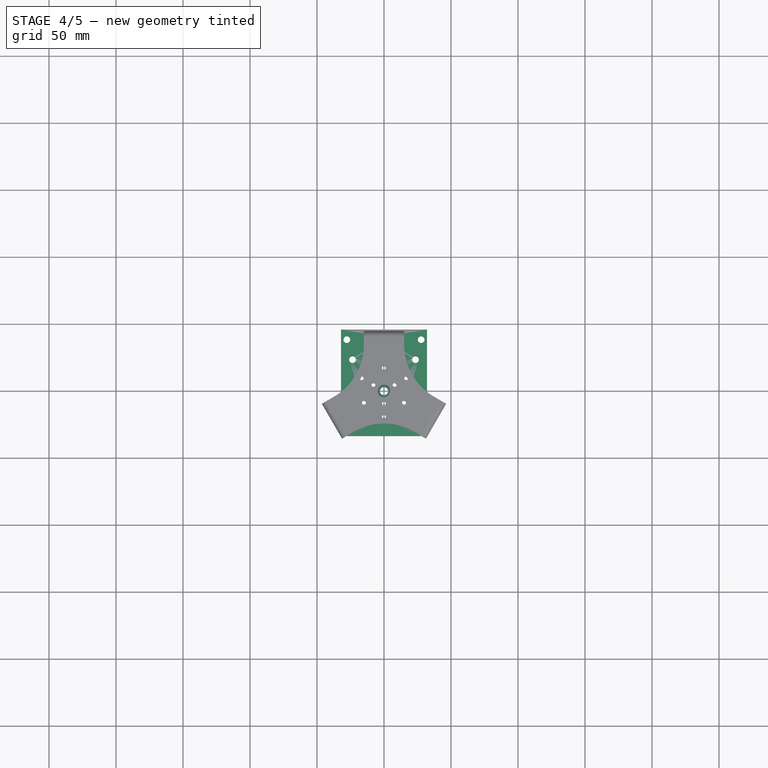
[diagram: stage 4 of 5 — top view after this stage's code; geometry added in this stage tinted green]
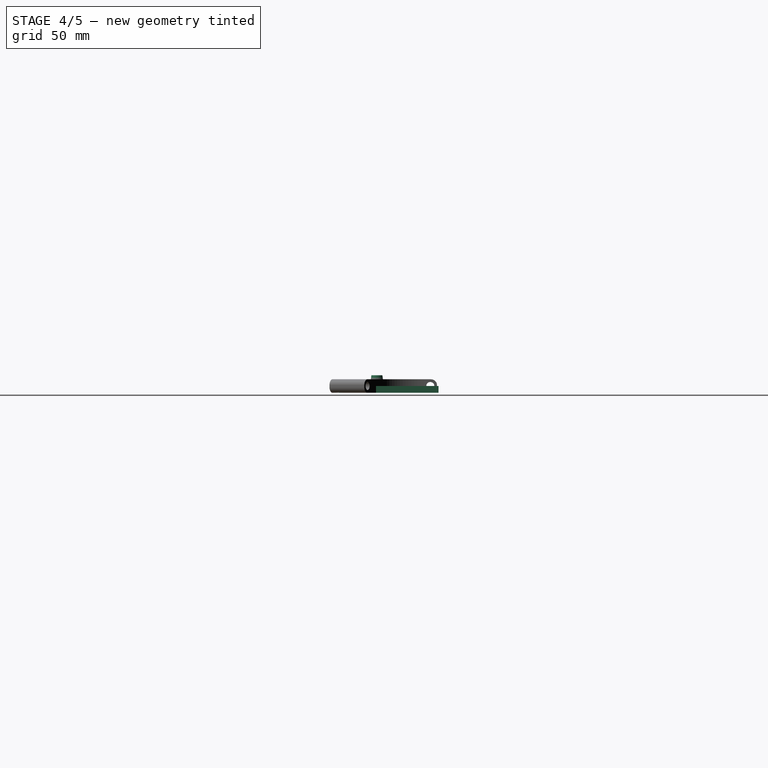
[diagram: stage 4 of 5 — right view after this stage's code; geometry added in this stage tinted green]
FEATURE [Sketcher::SketchObject] Sketch019
  ArcFitTolerance = 1e-06
  AttachmentSupport = -> [Pad010]
  ExternalGeometry = -> [Pad010]
  FullyConstrained = true
  MakeInternals = false
  MapMode = 5
  Placement = pos=(0,10,0) rot=(0,0.707107,0.707107;3.14159rad)
  sketch-geometry (2):
    g0: Circle CenterX=7.42617 CenterY=5 CenterZ=0 NormalX=0 NormalY=0 NormalZ=1 AngleXU=0 Radius=2.5
    g1: LineSegment [constr] StartX=12.4262 StartY=5 StartZ=0 EndX=7.42617 EndY=5 EndZ=0
  constraints (5):
    c: Symmetric(g-3,g-3,g1)
    c: Coincident(g1,g0)
    c: Horizontal(g1)
    c: Distance(g1,g1) = 5
    c: Diameter(g0) = 5
FEATURE [PartDesign::Pad] Pad009
  Direction = (0,0,1)
  Length = 5
  Length2 = 10
  Profile = -> Sketch016
  ReferenceAxis = -> Sketch016 [N_Axis]
  Refine = true
  Suppressed = false
  Type = 0
FEATURE [PartDesign::Body] Body008  label="bicep001"
  AllowCompound = false
  Group = -> [Sketch017,Pad010,Sketch019,Hole]
  Origin = -> Origin028
  Tip = -> Hole
FEATURE [App::Part] Part  label="bicep"
  Group = -> [Body008]
  Origin = -> Origin008
FEATURE [PartDesign::Chamfer] Chamfer001
  Angle = 45
  Base = -> Pad009 [Edge2,Edge5]
  BaseFeature = -> Pad009
  ChamferType = 0
  FlipDirection = false
  Refine = true
  Size = 5
  Size2 = 1
  SupportTransform = false
  Suppressed = false
  UseAllEdges = false
FEATURE [Sketcher::SketchObject] Sketch023
  ArcFitTolerance = 1e-06
  AttachmentSupport = -> [YZ_Plane018]
  FullyConstrained = true
  MakeInternals = false
  MapMode = 5
  Placement = pos=(0,0,0) rot=(0.57735,0.57735,0.57735;2.0944rad)
  expr: Constraints[11] = 26 / 2
  sketch-geometry (4):
    g0: LineSegment StartX=3.1 StartY=0 StartZ=0 EndX=3.1 EndY=13 EndZ=0
    g1: LineSegment StartX=3.1 StartY=13 StartZ=0 EndX=4.1 EndY=13 EndZ=0
    g2: LineSegment StartX=4.1 StartY=13 StartZ=0 EndX=6 EndY=0 EndZ=0
    g3: LineSegment StartX=6 StartY=0 StartZ=0 EndX=3.1 EndY=0 EndZ=0
  constraints (12):
    c: PointOnObject(g0,g-1)
    c: Vertical(g0)
    c: Coincident(g0,g1)
    c: Coincident(g1,g2)
    c: PointOnObject(g2,g-1)
    c: Coincident(g2,g3)
    c: Coincident(g3,g0)
    c: Horizontal(g1)
    c: Distance(g1,g1) = 1
    c: DistanceX(g-1,g2) = 6
    c: Distance(g-1,g0) = 3.1
    c: DistanceY(g0,g0) = 13
FEATURE [PartDesign::Revolution] Revolution
  Angle = 360
  Angle2 = 60
  Axis = (0,0,1)
  Base = (0,0,0)
  Placement = pos=(0,0,0) rot=(1,1,1;2.0944rad)
  Profile = -> Sketch023
  ReferenceAxis = -> Sketch023 [V_Axis]
  Refine = true
  Reversed = true
  Suppressed = false
  Type = 0
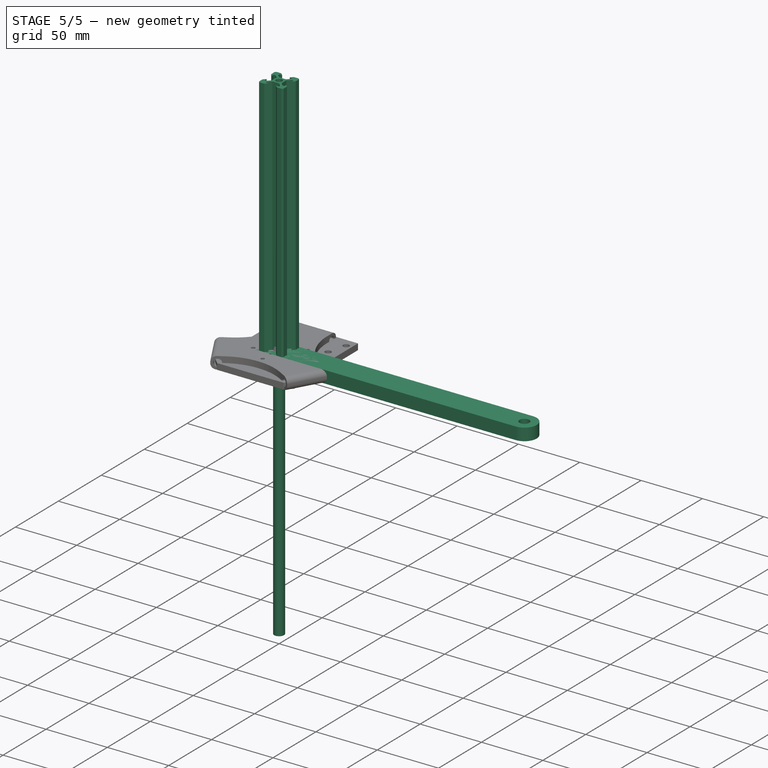
[diagram: stage 5 of 5 — iso view after this stage's code; geometry added in this stage tinted green]
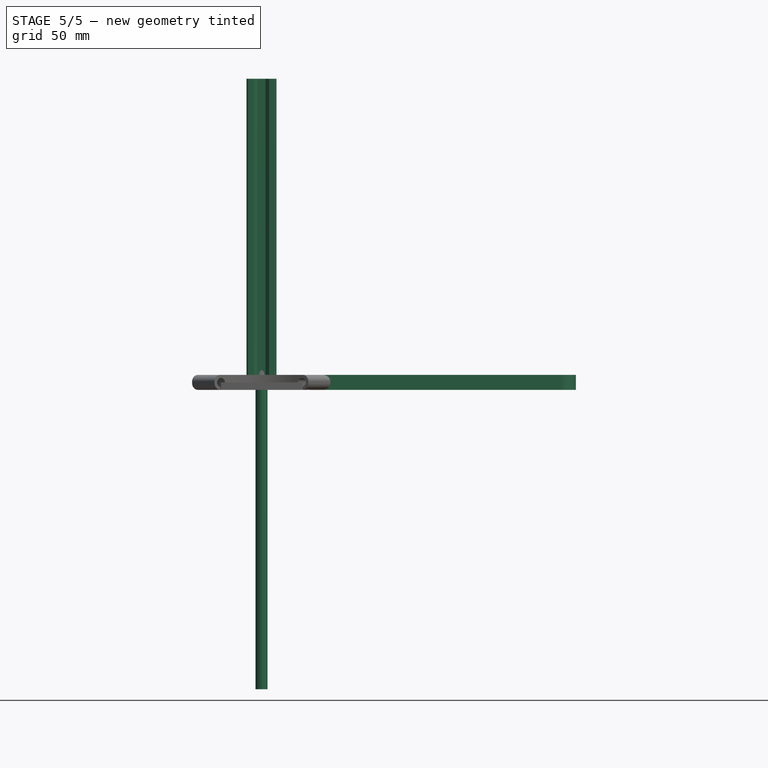
[diagram: stage 5 of 5 — front view after this stage's code; geometry added in this stage tinted green]
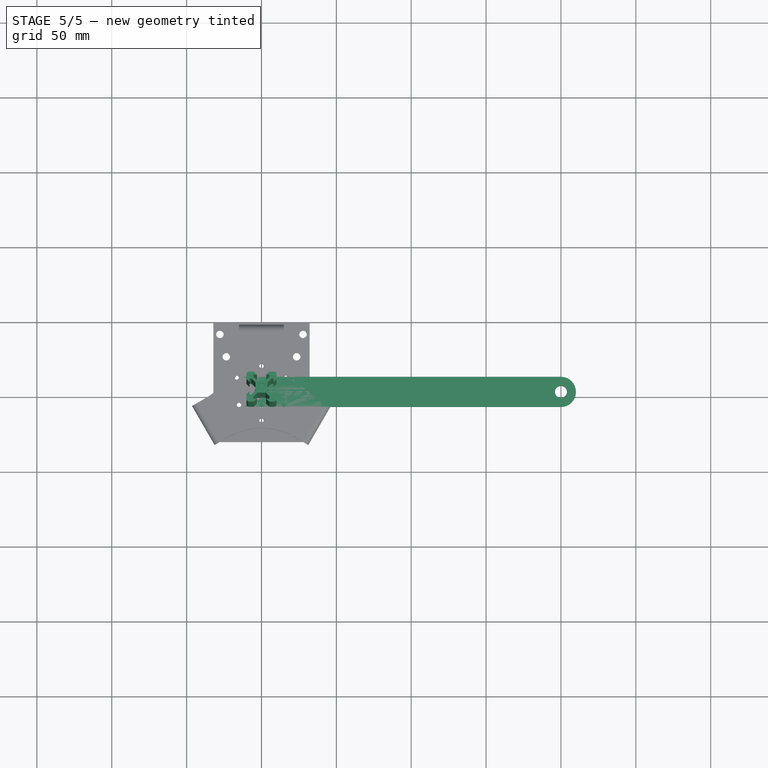
[diagram: stage 5 of 5 — top view after this stage's code; geometry added in this stage tinted green]
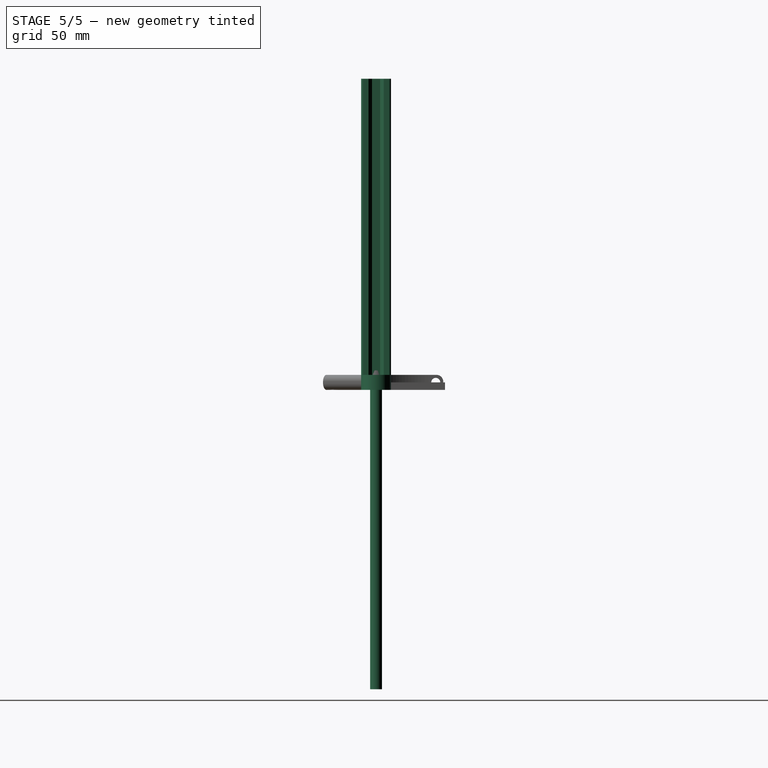
[diagram: stage 5 of 5 — right view after this stage's code; geometry added in this stage tinted green]
FEATURE [PartDesign::Pad] Pad008
  Direction = (0,0,1)
  Length = 207.79
  Length2 = 10
  Profile = -> Sketch015
  ReferenceAxis = -> Sketch015 [N_Axis]
  Refine = true
  Suppressed = false
  Type = 0
  expr: Length = <<ss>>.vslot_length
FEATURE [PartDesign::Body] Body006  label="vslot"
  AllowCompound = false
  Group = -> [Sketch015,Pad008]
  Origin = -> Origin024
  Tip = -> Pad008
FEATURE [Sketcher::SketchObject] Sketch016
  ArcFitTolerance = 1e-06
  AttachmentSupport = -> [XY_Plane015]
  FullyConstrained = false
  MakeInternals = false
  MapMode = 5
  sketch-geometry (19):
    g0: Circle CenterX=0 CenterY=0 CenterZ=0 NormalX=0 NormalY=0 NormalZ=1 AngleXU=0 Radius=20
    g1: LineSegment [constr] StartX=-23.5 StartY=-23.5 StartZ=0 EndX=23.5 EndY=-23.5 EndZ=0
    g2: LineSegment [constr] StartX=23.5 StartY=-23.5 StartZ=0 EndX=23.5 EndY=23.5 EndZ=0
    g3: LineSegment [constr] StartX=23.5 StartY=23.5 StartZ=0 EndX=-23.5 EndY=23.5 EndZ=0
    g4: LineSegment [constr] StartX=-23.5 StartY=23.5 StartZ=0 EndX=-23.5 EndY=-23.5 EndZ=0
    g5: GeomPoint [constr] X=0 Y=0 Z=0
    g6: Circle CenterX=-23.5 CenterY=23.5 CenterZ=0 NormalX=0 NormalY=0 NormalZ=1 AngleXU=0 Radius=2.5
    g7: Circle CenterX=23.5 CenterY=23.5 CenterZ=0 NormalX=0 NormalY=0 NormalZ=1 AngleXU=0 Radius=2.5
    g8: Circle CenterX=23.5 CenterY=-23.5 CenterZ=0 NormalX=0 NormalY=0 NormalZ=1 AngleXU=0 Radius=2.5
    g9: Circle CenterX=-23.5 CenterY=-23.5 CenterZ=0 NormalX=0 NormalY=0 NormalZ=1 AngleXU=0 Radius=2.5
    g10: LineSegment StartX=-32.1207 StartY=46 StartZ=0 EndX=-32.1207 EndY=-33.5 EndZ=0
    g11: LineSegment StartX=-32.1207 StartY=-33.5 StartZ=0 EndX=32.1207 EndY=-33.5 EndZ=0
    g12: LineSegment StartX=32.1207 StartY=-33.5 StartZ=0 EndX=32.1207 EndY=46 EndZ=0
    g13: LineSegment StartX=32.1207 StartY=46 StartZ=0 EndX=-32.1207 EndY=46 EndZ=0
    g14: GeomPoint [constr] X=0 Y=6.25 Z=0
    g15: LineSegment [constr] StartX=-27.7523 StartY=38.4474 StartZ=0 EndX=27.7523 EndY=38.4474 EndZ=0
    g16: Circle CenterX=-27.7523 CenterY=38.4474 CenterZ=0 NormalX=0 NormalY=0 NormalZ=1 AngleXU=0 Radius=2.5
    g17: Circle CenterX=0 CenterY=38.4474 CenterZ=0 NormalX=0 NormalY=0 NormalZ=1 AngleXU=0 Radius=2.5
    g18: Circle CenterX=27.7523 CenterY=38.4474 CenterZ=0 NormalX=0 NormalY=0 NormalZ=1 AngleXU=0 Radius=2.5
  constraints (39):
    c: Coincident(g0,g-1)
    c: Coincident(g1,g2)
    c: Coincident(g2,g3)
    c: Coincident(g3,g4)
    c: Coincident(g4,g1)
    c: Horizontal(g1)
    c: Horizontal(g3)
    c: Vertical(g2)
    c: Vertical(g4)
    c: Symmetric(g3,g1,g5)
    c: Coincident(g5,g0)
    c: Coincident(g7,g2)
    c: Coincident(g8,g1)
    c: Coincident(g9,g1)
    c: Coincident(g3,g6)
    c: Equal(g1,g2)
    c: Equal(g8,g9)
    c: Equal(g9,g6)
    c: Equal(g6,g7)
    c: Coincident(g10,g11)
    c: Coincident(g11,g12)
    c: Coincident(g12,g13)
    c: Coincident(g13,g10)
    c: Vertical(g10)
    c: Vertical(g12)
    c: Horizontal(g11)
    c: Horizontal(g13)
    c: Symmetric(g12,g10,g14)
    c: PointOnObject(g14,g-2)
    c: DistanceY(g10,g1) = 10
    c: DistanceX(g3,g3) = 47
    c: Diameter(g0) = 40
    c: DistanceY(g2,g12) = 22.5
    c: Diameter(g7) = 5
    c: Symmetric(g15,g15,g-2)
    c: Diameter(g16) = 5
    c: Coincident(g16,g15)
    c: Diameter(g17) = 5
    c: Diameter(g18) = 5
FEATURE [Sketcher::SketchObject] Sketch017
  ArcFitTolerance = 1e-06
  AttachmentSupport = -> [XY_Plane016]
  FullyConstrained = false
  MakeInternals = false
  MapMode = 5
  expr: Constraints[6] = <<ss>>.rf
  sketch-geometry (14):
    g0: LineSegment StartX=0 StartY=10 StartZ=0 EndX=200 EndY=10 EndZ=0
    g1: LineSegment [constr] StartX=0 StartY=-10 StartZ=0 EndX=0 EndY=8.25863 EndZ=0
    g2: LineSegment StartX=0 StartY=-10 StartZ=0 EndX=200 EndY=-10 EndZ=0
    g3: Circle [constr] CenterX=0 CenterY=0 CenterZ=0 NormalX=0 NormalY=0 NormalZ=1 AngleXU=0 Radius=4
    g4: Circle CenterX=200 CenterY=7e-16 CenterZ=0 NormalX=0 NormalY=0 NormalZ=1 AngleXU=0 Radius=4
    g5: ArcOfCircle CenterX=200 CenterY=7e-16 CenterZ=0 NormalX=0 NormalY=0 NormalZ=1 AngleXU=0 Radius=10 StartAngle=4.71239 EndAngle=7.85398
    g6: LineSegment StartX=0 StartY=10 StartZ=0 EndX=-12.4262 EndY=10 EndZ=0
    g7: LineSegment StartX=-12.4262 StartY=-10 StartZ=0 EndX=0 EndY=-10 EndZ=0
    g8: ArcOfCircle CenterX=0 CenterY=0 CenterZ=0 NormalX=0 NormalY=0 NormalZ=1 AngleXU=0 Radius=4 StartAngle=3.45389 EndAngle=9.11248
    g9: LineSegment StartX=-12.4262 StartY=-10 StartZ=0 EndX=-12.4262 EndY=-1.22899 EndZ=0
    g10: LineSegment StartX=-12.4262 StartY=-1.22899 StartZ=0 EndX=-3.80652 EndY=-1.22899 EndZ=0
    g11: LineSegment StartX=-12.4262 StartY=10 StartZ=0 EndX=-12.4262 EndY=1.22899 EndZ=0
    g12: LineSegment StartX=-12.4262 StartY=1.22899 StartZ=0 EndX=-3.80652 EndY=1.22899 EndZ=0
    g13: LineSegment [constr] StartX=-3.80652 StartY=1.22899 StartZ=0 EndX=-3.80652 EndY=-1.22899 EndZ=0
  constraints (36):
    c: Vertical(g1)
    c: Horizontal(g2)
    c: Parallel(g0,g2)
    c: Vertical(g0,g2)
    c: DistanceY(g1,g0) = 20
    c: Vertical(g2,g4)
    c: DistanceX(g3,g4) = 200
    c: Coincident(g0,g5)
    c: Coincident(g2,g5)
    c: Coincident(g4,g5)
    c: Diameter(g4) = 8
    c: Diameter(g3) = 8
    c: Coincident(g0,g6)
    c: Horizontal(g6)
    c: Coincident(g7,g2)
    c: Horizontal(g7)
    c: Symmetric(g0,g1,g3)
    c: Coincident(g3,g-1)
    c: PointOnObject(g0,g-2)
    c: Coincident(g1,g2)
    c: Coincident(g8,g3)
    c: PointOnObject(g8,g3)
    c: Coincident(g7,g9)
    c: Vertical(g9)
    c: Coincident(g9,g10)
    c: Coincident(g10,g8)
    c: Horizontal(g10)
    c: Coincident(g6,g11)
    c: Vertical(g11)
    c: Coincident(g11,g12)
    c: Coincident(g12,g8)
    c: Horizontal(g12)
    c: Equal(g9,g11)
    c: Equal(g12,g10)
    c: Coincident(g13,g8)
    c: Coincident(g13,g8)
FEATURE [PartDesign::Pad] Pad010
  Direction = (0,0,1)
  Length = 10
  Length2 = 10
  Profile = -> Sketch017
  ReferenceAxis = -> Sketch017 [N_Axis]
  Refine = true
  Suppressed = false
  Type = 0
FEATURE [PartDesign::Hole] Hole
  BaseFeature = -> Pad010
  CustomThreadClearance = 0
  Depth = 451.419
  DepthType = 1
  Diameter = 4.2
  DrillForDepth = false
  DrillPoint = 1
  DrillPointAngle = 118
  HoleCutCountersinkAngle = 90
  HoleCutCustomValues = false
  HoleCutDepth = 5
  HoleCutDiameter = 6
  HoleCutType = 1
  ModelThread = false
  Profile = -> Sketch019
  Refine = true
  Suppressed = false
  Tapered = false
  TaperedAngle = 90
  ThreadClass = 0
  ThreadDepth = 451.419
  ThreadDepthType = 0
  ThreadDirection = 0
  ThreadFit = 0
  ThreadSize = 13
  ThreadType = 1
  Threaded = true
  UseCustomThreadClearance = false
FEATURE [PartDesign::Body] Body007  label="nema23_holder"
  AllowCompound = false
  Group = -> [Sketch016,Pad009,Chamfer001]
  Origin = -> Origin026
  Tip = -> Chamfer001
FEATURE [PartDesign::Pad] Pad
  Direction = (0,0,1)
  Length = 400
  Length2 = 10
  Midplane = true
  Profile = -> Sketch
  ReferenceAxis = -> Sketch [N_Axis]
  Suppressed = false
  Type = 0
  expr: Length = Spreadsheet.re
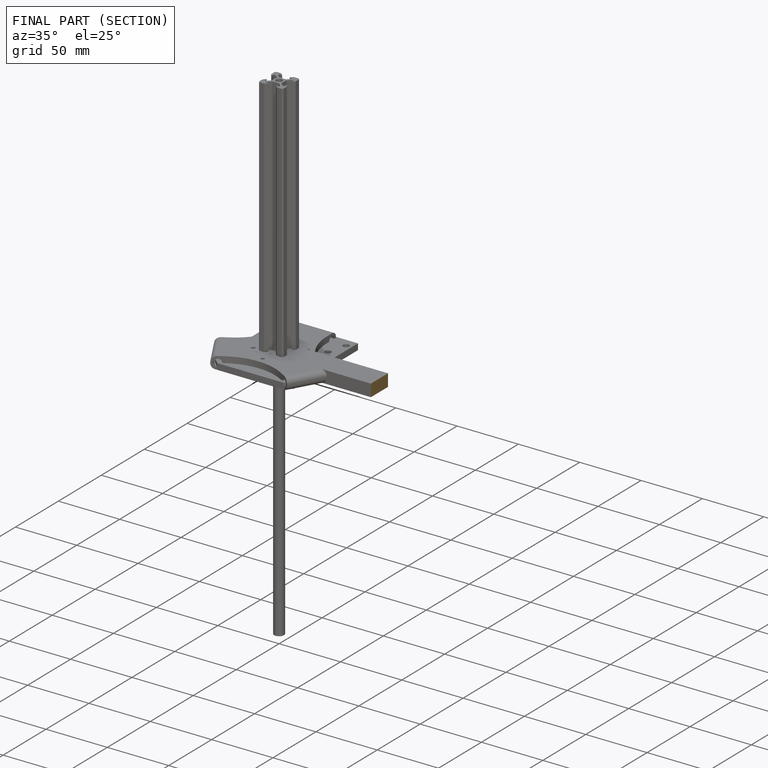
[diagram: finished part — half-section view (interior)]
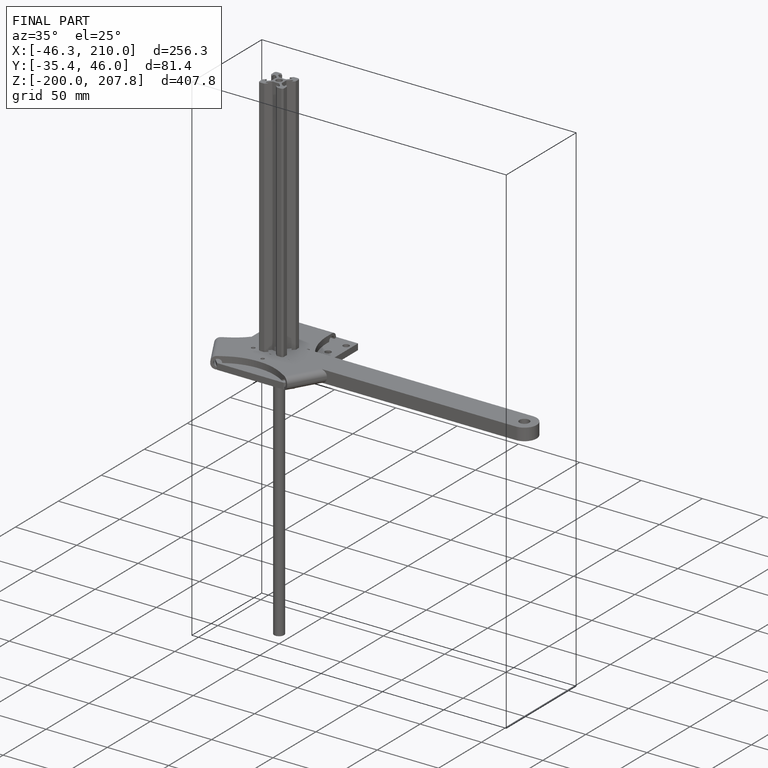
[diagram: finished part — iso view with bounding-box wireframe]
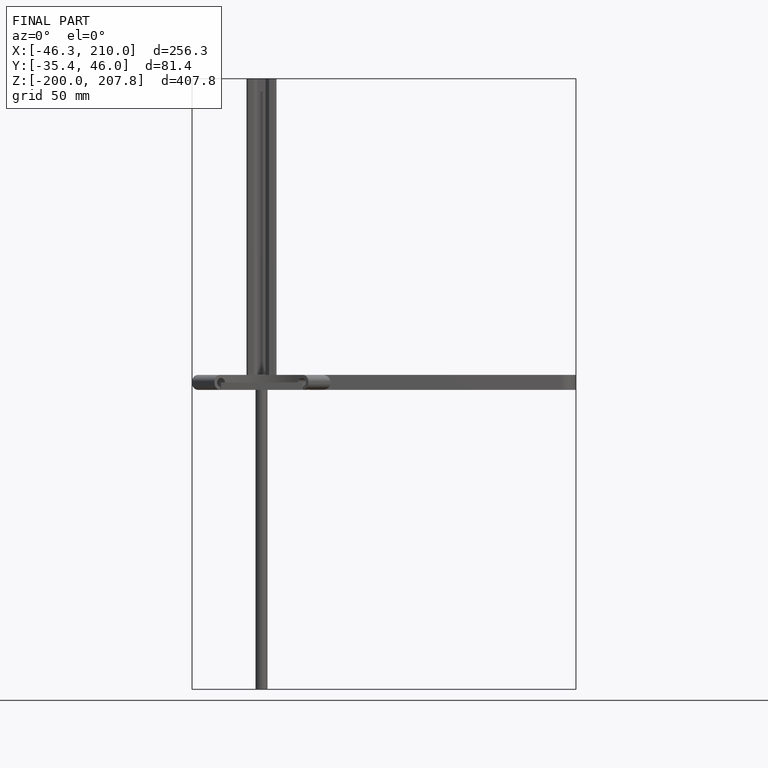
[diagram: finished part — front view with bounding-box wireframe]
